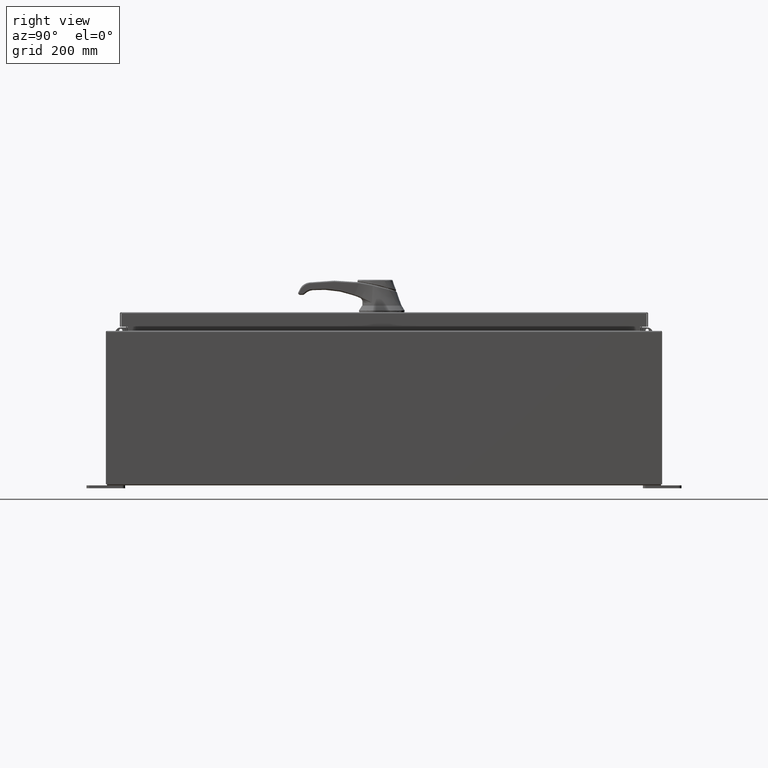
[diagram: clean part render]
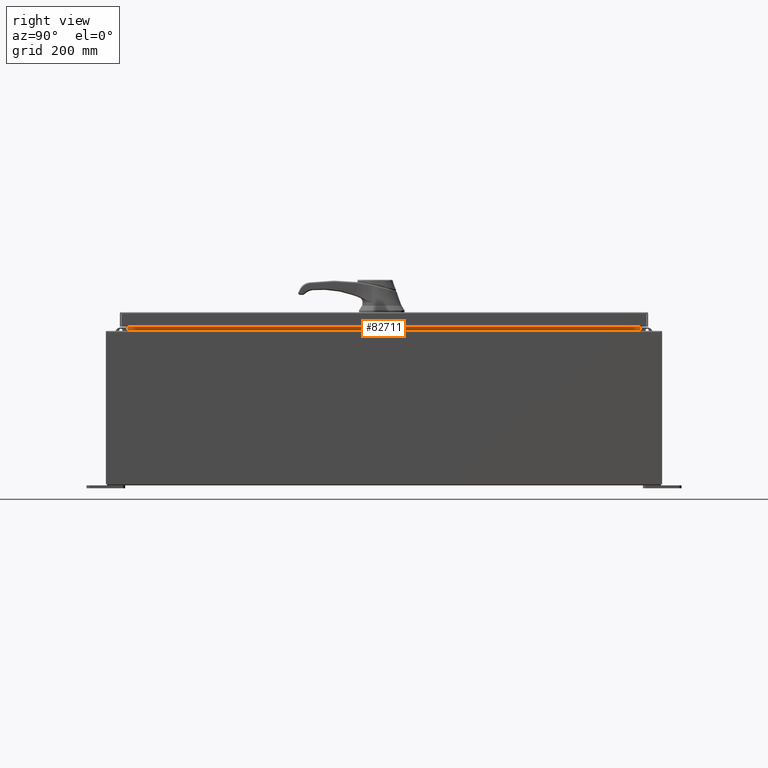
[diagram: same view with one face highlighted and labeled with its STEP entity id]
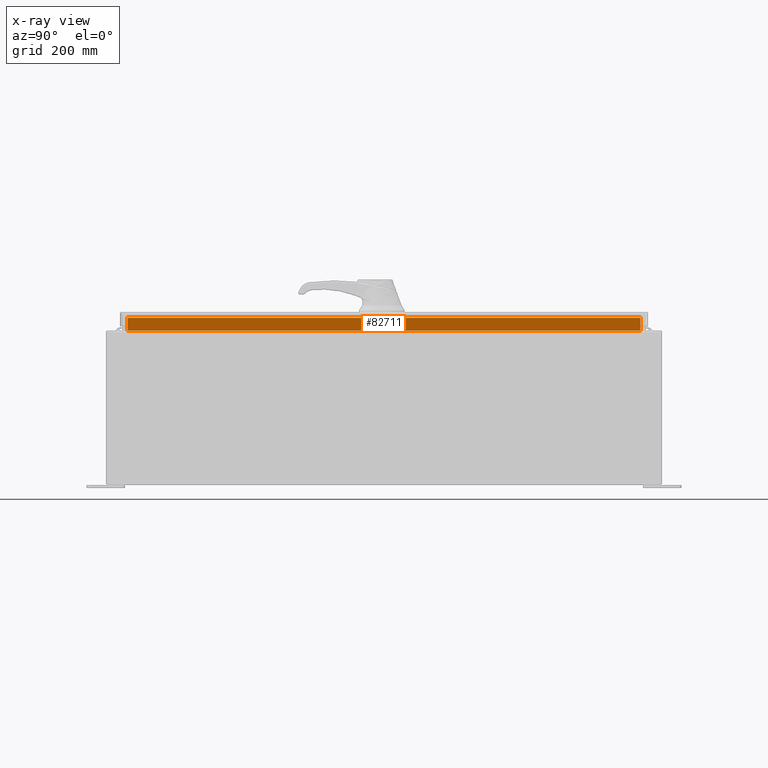
[diagram: x-ray of the same camera — body ghosted, the highlighted face saturated]
A machine part, right view. The second image highlights one B-rep face of the part: STEP entity #82711.
The next image is the same camera in x-ray: the body ghosted, the highlighted face saturated — about 0% of this face is hidden behind the body in this view.
In plain terms, the highlighted planar face has unit normal (1, -0, -0).
Its self-contained STEP definition (entity closure, byte-faithful):
#436 = EDGE_CURVE ( 'NONE', #120032, #120313, #81359, .T. ) ;
#7631 = LINE ( 'NONE', #107571, #32647 ) ;
#17613 = ORIENTED_EDGE ( 'NONE', *, *, #104359, .F. ) ;
#21334 = VERTEX_POINT ( 'NONE', #92792 ) ;
#23895 = LINE ( 'NONE', #79788, #65033 ) ;
#26388 = CARTESIAN_POINT ( 'NONE',  ( 10.69970000000001200, -1.664207732215685800E-030, -2.527176394925717600E-014 ) ) ;
#29389 = LINE ( 'NONE', #51370, #76428 ) ;
#30033 = EDGE_CURVE ( 'NONE', #103570, #21334, #7631, .T. ) ;
#30394 = ORIENTED_EDGE ( 'NONE', *, *, #112120, .F. ) ;
#32534 = EDGE_LOOP ( 'NONE', ( #30394, #32883, #17613, #71785 ) ) ;
#32647 = VECTOR ( 'NONE', #41684, 39.37007874015748100 ) ;
#32883 = ORIENTED_EDGE ( 'NONE', *, *, #30033, .F. ) ;
#35832 = DIRECTION ( 'NONE',  ( 1.000000000000000000, -1.555377937900767200E-031, -2.361913319930198800E-015 ) ) ;
#36742 = FACE_OUTER_BOUND ( 'NONE', #32534, .T. ) ;
#37557 = AXIS2_PLACEMENT_3D ( 'NONE', #26388, #35832, #101656 ) ;
#41684 = DIRECTION ( 'NONE',  ( 0.0000000000000000000, 1.000000000000000000, 0.0000000000000000000 ) ) ;
#51370 = CARTESIAN_POINT ( 'NONE',  ( 10.69970000000003900, -16.59375000000000000, 10.85060000000001100 ) ) ;
#51818 = DIRECTION ( 'NONE',  ( -2.361913319930198800E-015, -0.0000000000000000000, -1.000000000000000000 ) ) ;
#56342 = VECTOR ( 'NONE', #71540, 39.37007874015748100 ) ;
#60824 = DIRECTION ( 'NONE',  ( 2.361913319930198800E-015, -0.0000000000000000000, 1.000000000000000000 ) ) ;
#62673 = CARTESIAN_POINT ( 'NONE',  ( 10.69970000000003900, -16.59375000000000000, 10.76290000000000700 ) ) ;
#64841 = CARTESIAN_POINT ( 'NONE',  ( 10.69970000000003700, -16.59374999999999600, 9.938300000000014100 ) ) ;
#65033 = VECTOR ( 'NONE', #51818, 39.37007874015748100 ) ;
#71540 = DIRECTION ( 'NONE',  ( 0.0000000000000000000, -1.000000000000000000, 1.975573690333478700E-016 ) ) ;
#71785 = ORIENTED_EDGE ( 'NONE', *, *, #436, .F. ) ;
#71931 = CARTESIAN_POINT ( 'NONE',  ( 10.69970000000003400, 16.59374999999999600, 9.938300000000008800 ) ) ;
#76428 = VECTOR ( 'NONE', #60824, 39.37007874015748100 ) ;
#79788 = CARTESIAN_POINT ( 'NONE',  ( 10.69970000000003700, 16.59374999999999600, 9.925300000000008900 ) ) ;
#81359 = LINE ( 'NONE', #71931, #56342 ) ;
#82711 = ADVANCED_FACE ( 'NONE', ( #36742 ), #92198, .T. ) ;
#89643 = CARTESIAN_POINT ( 'NONE',  ( 10.69970000000003700, 16.59374999999999600, 9.938300000000014100 ) ) ;
#92198 = PLANE ( 'NONE',  #37557 ) ;
#92792 = CARTESIAN_POINT ( 'NONE',  ( 10.69970000000004600, 16.59374999999999600, 10.76290000000000700 ) ) ;
#101656 = DIRECTION ( 'NONE',  ( -2.361913319930198800E-015, 0.0000000000000000000, -1.000000000000000000 ) ) ;
#103570 = VERTEX_POINT ( 'NONE', #62673 ) ;
#104359 = EDGE_CURVE ( 'NONE', #120313, #103570, #29389, .T. ) ;
#107571 = CARTESIAN_POINT ( 'NONE',  ( 10.69970000000004600, -16.59375000000000000, 10.76290000000000700 ) ) ;
#112120 = EDGE_CURVE ( 'NONE', #21334, #120032, #23895, .T. ) ;
#120032 = VERTEX_POINT ( 'NONE', #89643 ) ;
#120313 = VERTEX_POINT ( 'NONE', #64841 ) ;